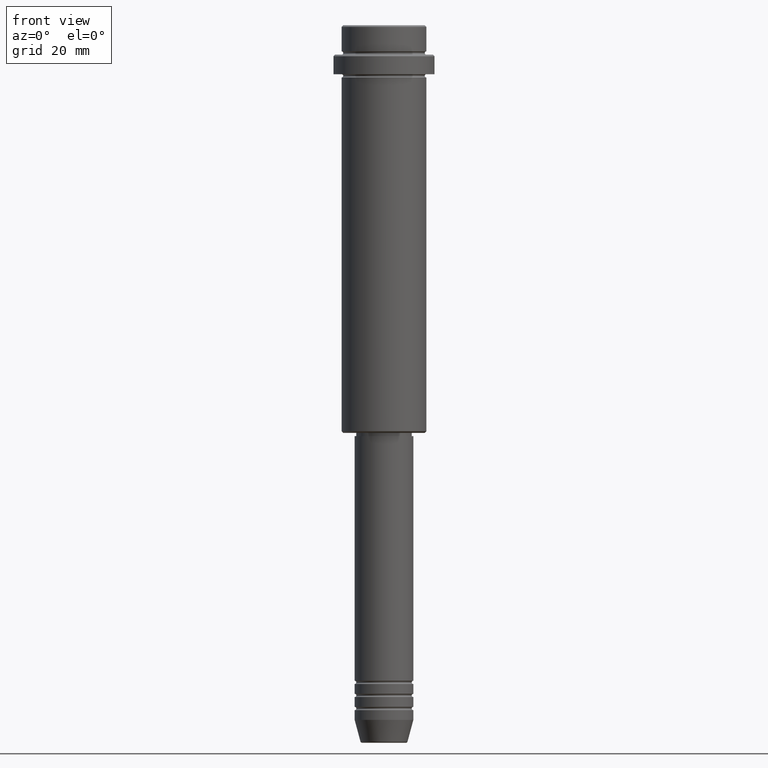
[diagram: clean part render]
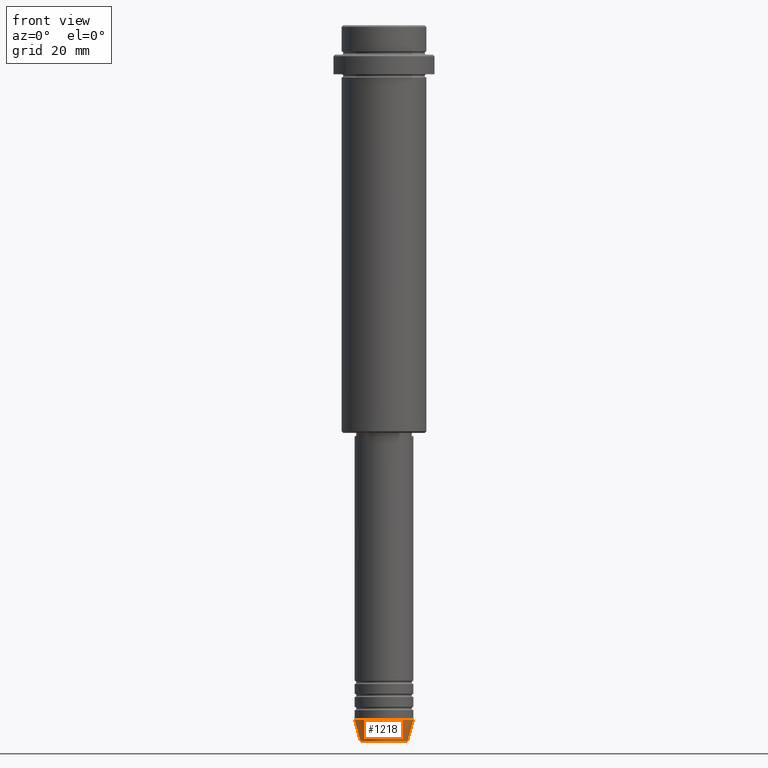
[diagram: same view with one face highlighted and labeled with its STEP entity id]
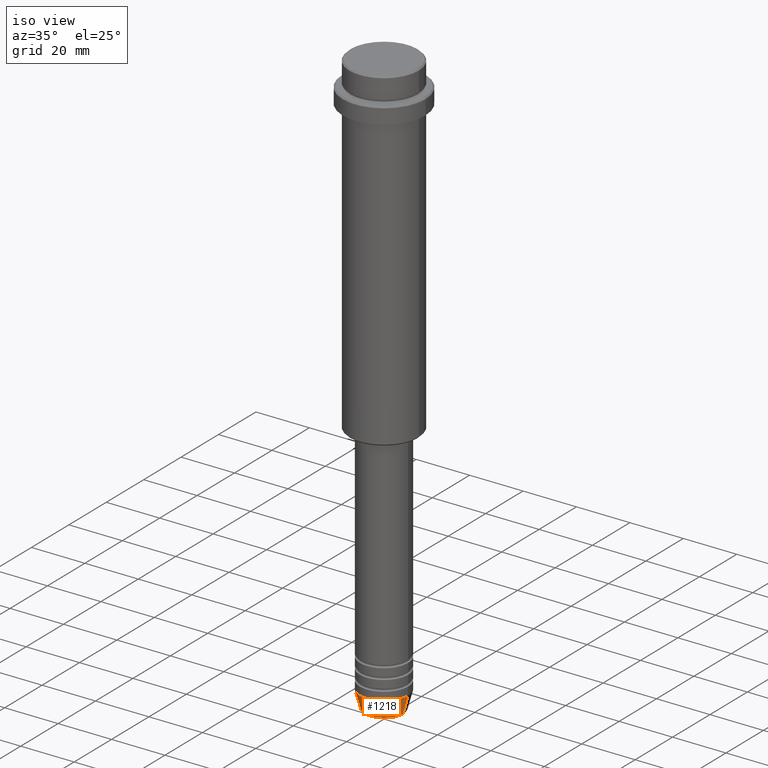
[diagram: same view with one face highlighted and labeled with its STEP entity id]
A machine part, front view. The second image highlights one B-rep face of the part: STEP entity #1218.
A second angle (iso view) of the same face is appended — the face is thin or edge-on in the first view.
In plain terms, the highlighted conical surface has half-angle 15 deg.
Its self-contained STEP definition (entity closure, byte-faithful):
#29 = DIRECTION ( 'NONE',  ( 0.2588190451025205174, 0.000000000000000000, 0.9659258262890684232 ) ) ;
#31 = ORIENTED_EDGE ( 'NONE', *, *, #623, .F. ) ;
#53 = EDGE_LOOP ( 'NONE', ( #538, #286, #1087, #31 ) ) ;
#106 = VECTOR ( 'NONE', #1173, 1000.000000000000114 ) ;
#128 = LINE ( 'NONE', #1230, #385 ) ;
#286 = ORIENTED_EDGE ( 'NONE', *, *, #1120, .T. ) ;
#311 = FACE_OUTER_BOUND ( 'NONE', #53, .T. ) ;
#385 = VECTOR ( 'NONE', #29, 1000.000000000000114 ) ;
#399 = DIRECTION ( 'NONE',  ( -0.000000000000000000, -0.000000000000000000, 1.000000000000000000 ) ) ;
#440 = DIRECTION ( 'NONE',  ( 1.000000000000000000, 0.000000000000000000, 0.000000000000000000 ) ) ;
#538 = ORIENTED_EDGE ( 'NONE', *, *, #1013, .F. ) ;
#552 = DIRECTION ( 'NONE',  ( -0.000000000000000000, -0.000000000000000000, 1.000000000000000000 ) ) ;
#570 = VERTEX_POINT ( 'NONE', #717 ) ;
#615 = AXIS2_PLACEMENT_3D ( 'NONE', #830, #399, #950 ) ;
#623 = EDGE_CURVE ( 'NONE', #1017, #570, #1005, .T. ) ;
#629 = CARTESIAN_POINT ( 'NONE',  ( -9.000000000000000000, 1.102182119232617714E-15, -213.0000000000000284 ) ) ;
#692 = DIRECTION ( 'NONE',  ( -0.000000000000000000, -0.000000000000000000, 1.000000000000000000 ) ) ;
#717 = CARTESIAN_POINT ( 'NONE',  ( 9.000000000000000000, 0.000000000000000000, -213.0000000000000284 ) ) ;
#799 = CARTESIAN_POINT ( 'NONE',  ( 0.000000000000000000, 0.000000000000000000, -213.0000000000000284 ) ) ;
#825 = CIRCLE ( 'NONE', #615, 7.223655072137194821 ) ;
#826 = VERTEX_POINT ( 'NONE', #1127 ) ;
#830 = CARTESIAN_POINT ( 'NONE',  ( 0.000000000000000000, 0.000000000000000000, -219.6294095225512706 ) ) ;
#869 = AXIS2_PLACEMENT_3D ( 'NONE', #1189, #552, #440 ) ;
#890 = CARTESIAN_POINT ( 'NONE',  ( 7.223655072137194821, 0.000000000000000000, -219.6294095225512706 ) ) ;
#929 = EDGE_CURVE ( 'NONE', #1271, #570, #128, .T. ) ;
#950 = DIRECTION ( 'NONE',  ( 1.000000000000000000, 0.000000000000000000, 0.000000000000000000 ) ) ;
#1005 = CIRCLE ( 'NONE', #1051, 9.000000000000000000 ) ;
#1013 = EDGE_CURVE ( 'NONE', #826, #1017, #1386, .T. ) ;
#1017 = VERTEX_POINT ( 'NONE', #1376 ) ;
#1051 = AXIS2_PLACEMENT_3D ( 'NONE', #799, #692, #1131 ) ;
#1087 = ORIENTED_EDGE ( 'NONE', *, *, #929, .T. ) ;
#1120 = EDGE_CURVE ( 'NONE', #826, #1271, #825, .T. ) ;
#1127 = CARTESIAN_POINT ( 'NONE',  ( -7.223655072137194821, 9.934123627281767082E-16, -219.6294095225512706 ) ) ;
#1131 = DIRECTION ( 'NONE',  ( 1.000000000000000000, 0.000000000000000000, 0.000000000000000000 ) ) ;
#1173 = DIRECTION ( 'NONE',  ( -0.2588190451025205174, 3.169619151431761243E-17, 0.9659258262890684232 ) ) ;
#1186 = CONICAL_SURFACE ( 'NONE', #869, 9.000000000000000000, 0.2617993877991491303 ) ;
#1189 = CARTESIAN_POINT ( 'NONE',  ( 0.000000000000000000, 0.000000000000000000, -213.0000000000000284 ) ) ;
#1218 = ADVANCED_FACE ( 'NONE', ( #311 ), #1186, .T. ) ;
#1230 = CARTESIAN_POINT ( 'NONE',  ( 9.000000000000000000, 0.000000000000000000, -213.0000000000000284 ) ) ;
#1271 = VERTEX_POINT ( 'NONE', #890 ) ;
#1376 = CARTESIAN_POINT ( 'NONE',  ( -9.000000000000000000, 1.102182119232617714E-15, -213.0000000000000284 ) ) ;
#1386 = LINE ( 'NONE', #629, #106 ) ;